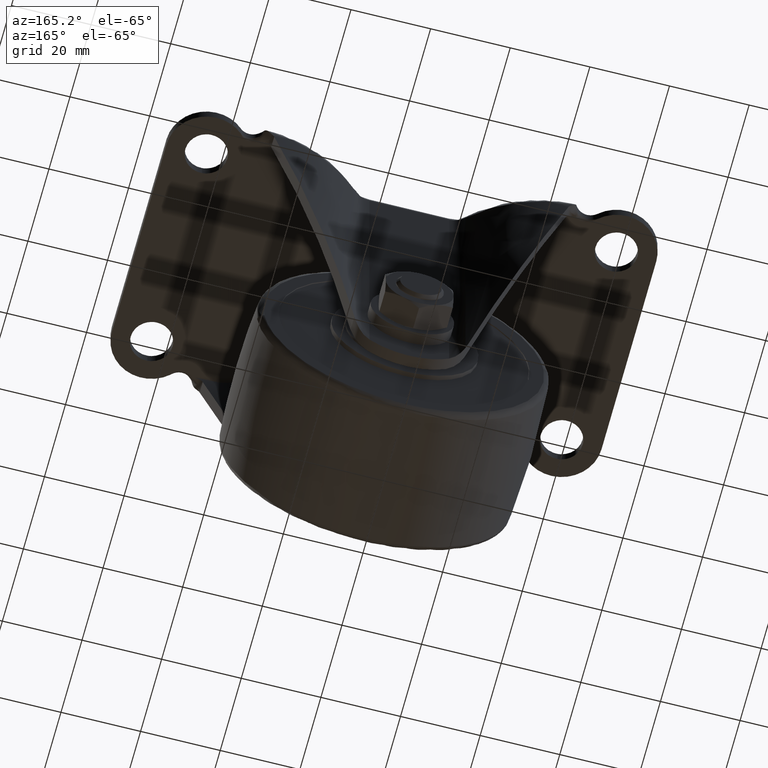
[diagram: clean part render]
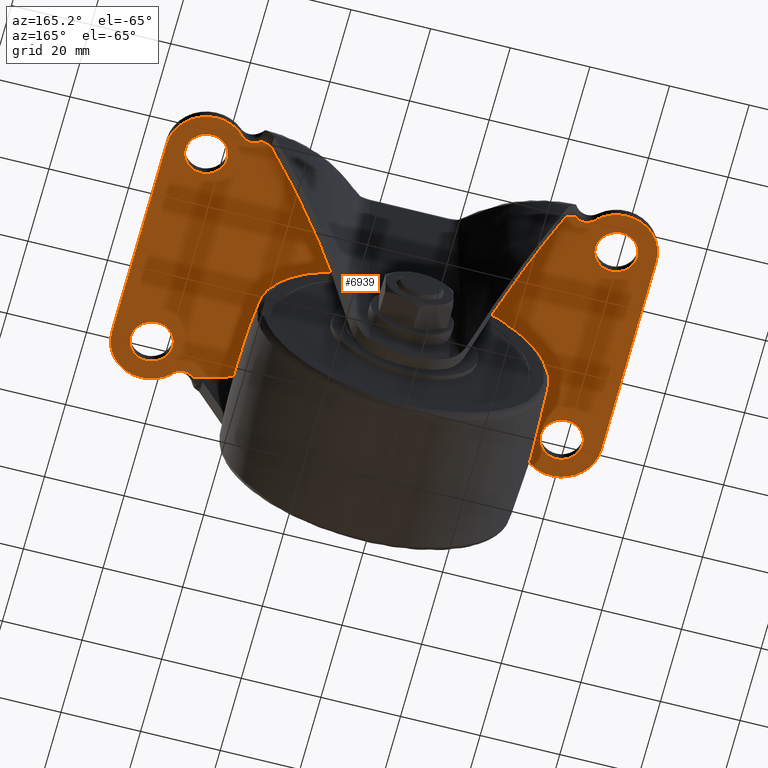
[diagram: same view with one face highlighted and labeled with its STEP entity id]
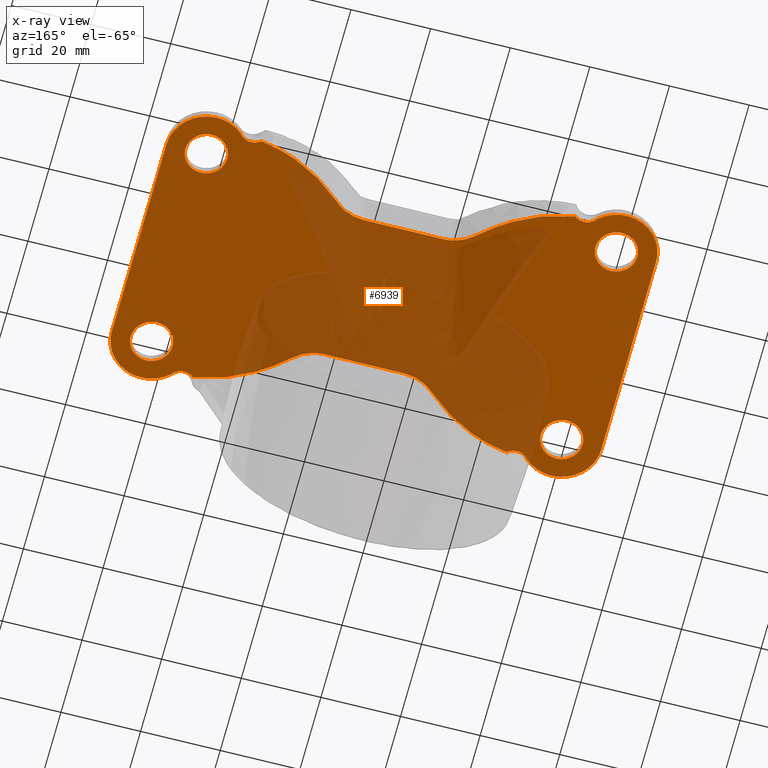
[diagram: x-ray of the same camera — body ghosted, the highlighted face saturated]
A machine part, auxiliary view. The second image highlights one B-rep face of the part: STEP entity #6939.
The next image is the same camera in x-ray: the body ghosted, the highlighted face saturated — about 42% of this face is hidden behind the body in this view.
In plain terms, the highlighted face is a freeform B-spline surface patch.
Its self-contained STEP definition (entity closure, byte-faithful):
#2417=CARTESIAN_POINT('',(-51.179495167190133,31.240207691699400,-2.900000000000000));
#2418=VERTEX_POINT('',#2417);
#2424=CARTESIAN_POINT('',(-46.250000000000000,26.0,-2.900000000000000));
#2425=VERTEX_POINT('',#2424);
#2426=CARTESIAN_POINT('',(-46.250000000000000,26.0,-2.900000000000000));
#2427=CARTESIAN_POINT('',(-46.250000000000000,30.938706851017070,-2.900000000000001));
#2428=CARTESIAN_POINT('',(-51.179495167190126,31.240207691699403,-2.900000000000001));
#2436=(BOUNDED_CURVE()B_SPLINE_CURVE(2,(#2426,#2427,#2428),.UNSPECIFIED.,.F.,.U.)B_SPLINE_CURVE_WITH_KNOTS((3,3),(0.500000000000000,0.739332962233675),.UNSPECIFIED.)CURVE()GEOMETRIC_REPRESENTATION_ITEM()RATIONAL_B_SPLINE_CURVE((1.0,0.719603993292882,0.976072041655427))REPRESENTATION_ITEM(''));
#2437=EDGE_CURVE('',#2425,#2418,#2436,.T.);
#2439=CARTESIAN_POINT('',(-51.820504832809867,20.759792308300600,-2.900000000000000));
#2440=VERTEX_POINT('',#2439);
#2441=CARTESIAN_POINT('',(-51.820504832809881,20.759792308300604,-2.900000000000001));
#2442=CARTESIAN_POINT('',(-51.660402007443885,20.749999999999996,-2.900000000000001));
#2443=CARTESIAN_POINT('',(-51.500000000000000,20.750000000000000,-2.900000000000000));
#2444=CARTESIAN_POINT('',(-46.249999999999993,20.750000000000000,-2.900000000000001));
#2445=CARTESIAN_POINT('',(-46.250000000000000,26.0,-2.900000000000000));
#2453=(BOUNDED_CURVE()B_SPLINE_CURVE(2,(#2441,#2442,#2443,#2444,#2445),.UNSPECIFIED.,.F.,.U.)B_SPLINE_CURVE_WITH_KNOTS((3,2,3),(0.239332962233675,0.250000000000000,0.500000000000000),.UNSPECIFIED.)CURVE()GEOMETRIC_REPRESENTATION_ITEM()RATIONAL_B_SPLINE_CURVE((0.976072041655427,0.987502787893665,1.0,0.707106781186547,1.0))REPRESENTATION_ITEM(''));
#2454=EDGE_CURVE('',#2440,#2425,#2453,.T.);
#2498=CARTESIAN_POINT('',(-56.749999999999993,26.0,-2.900000000000000));
#2499=VERTEX_POINT('',#2498);
#2500=CARTESIAN_POINT('',(-56.749999999999993,26.0,-2.900000000000000));
#2501=CARTESIAN_POINT('',(-56.749999999999979,21.061293148982934,-2.900000000000001));
#2502=CARTESIAN_POINT('',(-51.820504832809881,20.759792308300604,-2.900000000000000));
#2510=(BOUNDED_CURVE()B_SPLINE_CURVE(2,(#2500,#2501,#2502),.UNSPECIFIED.,.F.,.U.)B_SPLINE_CURVE_WITH_KNOTS((3,3),(0.0,0.239332962233675),.UNSPECIFIED.)CURVE()GEOMETRIC_REPRESENTATION_ITEM()RATIONAL_B_SPLINE_CURVE((1.0,0.719603993292882,0.976072041655427))REPRESENTATION_ITEM(''));
#2511=EDGE_CURVE('',#2499,#2440,#2510,.T.);
#2513=CARTESIAN_POINT('',(-51.179495167190140,31.240207691699403,-2.900000000000001));
#2514=CARTESIAN_POINT('',(-51.339597992556122,31.250000000000000,-2.900000000000001));
#2515=CARTESIAN_POINT('',(-51.500000000000000,31.250000000000000,-2.900000000000000));
#2516=CARTESIAN_POINT('',(-56.749999999999993,31.250000000000004,-2.900000000000001));
#2517=CARTESIAN_POINT('',(-56.749999999999993,26.0,-2.900000000000000));
#2525=(BOUNDED_CURVE()B_SPLINE_CURVE(2,(#2513,#2514,#2515,#2516,#2517),.UNSPECIFIED.,.F.,.U.)B_SPLINE_CURVE_WITH_KNOTS((3,2,3),(0.739332962233675,0.750000000000000,1.0),.UNSPECIFIED.)CURVE()GEOMETRIC_REPRESENTATION_ITEM()RATIONAL_B_SPLINE_CURVE((0.976072041655427,0.987502787893665,1.0,0.707106781186547,1.0))REPRESENTATION_ITEM(''));
#2526=EDGE_CURVE('',#2418,#2499,#2525,.T.);
#2599=CARTESIAN_POINT('',(-51.179495167190133,-20.759792308300600,-2.900000000000000));
#2600=VERTEX_POINT('',#2599);
#2606=CARTESIAN_POINT('',(-46.250000000000000,-26.0,-2.900000000000000));
#2607=VERTEX_POINT('',#2606);
#2608=CARTESIAN_POINT('',(-46.250000000000000,-26.0,-2.900000000000000));
#2609=CARTESIAN_POINT('',(-46.250000000000000,-21.061293148982930,-2.900000000000001));
#2610=CARTESIAN_POINT('',(-51.179495167190126,-20.759792308300611,-2.900000000000001));
#2618=(BOUNDED_CURVE()B_SPLINE_CURVE(2,(#2608,#2609,#2610),.UNSPECIFIED.,.F.,.U.)B_SPLINE_CURVE_WITH_KNOTS((3,3),(0.500000000000000,0.739332962233675),.UNSPECIFIED.)CURVE()GEOMETRIC_REPRESENTATION_ITEM()RATIONAL_B_SPLINE_CURVE((1.0,0.719603993292882,0.976072041655427))REPRESENTATION_ITEM(''));
#2619=EDGE_CURVE('',#2607,#2600,#2618,.T.);
#2621=CARTESIAN_POINT('',(-51.820504832809867,-31.240207691699400,-2.900000000000000));
#2622=VERTEX_POINT('',#2621);
#2623=CARTESIAN_POINT('',(-51.820504832809874,-31.240207691699396,-2.900000000000000));
#2624=CARTESIAN_POINT('',(-51.660402007443892,-31.249999999999996,-2.900000000000000));
#2625=CARTESIAN_POINT('',(-51.500000000000000,-31.250000000000000,-2.900000000000000));
#2626=CARTESIAN_POINT('',(-46.249999999999993,-31.250000000000004,-2.900000000000001));
#2627=CARTESIAN_POINT('',(-46.250000000000000,-26.0,-2.900000000000000));
#2635=(BOUNDED_CURVE()B_SPLINE_CURVE(2,(#2623,#2624,#2625,#2626,#2627),.UNSPECIFIED.,.F.,.U.)B_SPLINE_CURVE_WITH_KNOTS((3,2,3),(0.239332962233675,0.250000000000000,0.500000000000000),.UNSPECIFIED.)CURVE()GEOMETRIC_REPRESENTATION_ITEM()RATIONAL_B_SPLINE_CURVE((0.976072041655427,0.987502787893665,1.0,0.707106781186547,1.0))REPRESENTATION_ITEM(''));
#2636=EDGE_CURVE('',#2622,#2607,#2635,.T.);
#2680=CARTESIAN_POINT('',(-56.749999999999993,-26.0,-2.900000000000000));
#2681=VERTEX_POINT('',#2680);
#2682=CARTESIAN_POINT('',(-56.749999999999993,-26.0,-2.900000000000000));
#2683=CARTESIAN_POINT('',(-56.749999999999972,-30.938706851017063,-2.900000000000000));
#2684=CARTESIAN_POINT('',(-51.820504832809881,-31.240207691699400,-2.900000000000000));
#2692=(BOUNDED_CURVE()B_SPLINE_CURVE(2,(#2682,#2683,#2684),.UNSPECIFIED.,.F.,.U.)B_SPLINE_CURVE_WITH_KNOTS((3,3),(0.0,0.239332962233675),.UNSPECIFIED.)CURVE()GEOMETRIC_REPRESENTATION_ITEM()RATIONAL_B_SPLINE_CURVE((1.0,0.719603993292882,0.976072041655426))REPRESENTATION_ITEM(''));
#2693=EDGE_CURVE('',#2681,#2622,#2692,.T.);
#2695=CARTESIAN_POINT('',(-51.179495167190140,-20.759792308300604,-2.900000000000001));
#2696=CARTESIAN_POINT('',(-51.339597992556122,-20.749999999999996,-2.900000000000001));
#2697=CARTESIAN_POINT('',(-51.500000000000000,-20.750000000000000,-2.900000000000000));
#2698=CARTESIAN_POINT('',(-56.749999999999993,-20.750000000000000,-2.900000000000001));
#2699=CARTESIAN_POINT('',(-56.749999999999993,-26.0,-2.900000000000000));
#2707=(BOUNDED_CURVE()B_SPLINE_CURVE(2,(#2695,#2696,#2697,#2698,#2699),.UNSPECIFIED.,.F.,.U.)B_SPLINE_CURVE_WITH_KNOTS((3,2,3),(0.739332962233675,0.750000000000000,1.0),.UNSPECIFIED.)CURVE()GEOMETRIC_REPRESENTATION_ITEM()RATIONAL_B_SPLINE_CURVE((0.976072041655427,0.987502787893665,1.0,0.707106781186547,1.0))REPRESENTATION_ITEM(''));
#2708=EDGE_CURVE('',#2600,#2681,#2707,.T.);
#2781=CARTESIAN_POINT('',(51.820504832809867,31.240207691699400,-2.900000000000000));
#2782=VERTEX_POINT('',#2781);
#2788=CARTESIAN_POINT('',(56.749999999999993,26.0,-2.900000000000000));
#2789=VERTEX_POINT('',#2788);
#2790=CARTESIAN_POINT('',(56.749999999999993,26.0,-2.900000000000000));
#2791=CARTESIAN_POINT('',(56.749999999999972,30.938706851017070,-2.900000000000001));
#2792=CARTESIAN_POINT('',(51.820504832809881,31.240207691699403,-2.900000000000001));
#2800=(BOUNDED_CURVE()B_SPLINE_CURVE(2,(#2790,#2791,#2792),.UNSPECIFIED.,.F.,.U.)B_SPLINE_CURVE_WITH_KNOTS((3,3),(0.500000000000000,0.739332962233675),.UNSPECIFIED.)CURVE()GEOMETRIC_REPRESENTATION_ITEM()RATIONAL_B_SPLINE_CURVE((1.0,0.719603993292882,0.976072041655427))REPRESENTATION_ITEM(''));
#2801=EDGE_CURVE('',#2789,#2782,#2800,.T.);
#2803=CARTESIAN_POINT('',(51.179495167190133,20.759792308300600,-2.900000000000000));
#2804=VERTEX_POINT('',#2803);
#2805=CARTESIAN_POINT('',(51.179495167190133,20.759792308300600,-2.900000000000000));
#2806=CARTESIAN_POINT('',(51.339597992556122,20.750000000000000,-2.900000000000000));
#2807=CARTESIAN_POINT('',(51.500000000000000,20.750000000000000,-2.900000000000000));
#2808=CARTESIAN_POINT('',(56.749999999999993,20.750000000000000,-2.900000000000001));
#2809=CARTESIAN_POINT('',(56.749999999999993,26.0,-2.900000000000000));
#2817=(BOUNDED_CURVE()B_SPLINE_CURVE(2,(#2805,#2806,#2807,#2808,#2809),.UNSPECIFIED.,.F.,.U.)B_SPLINE_CURVE_WITH_KNOTS((3,2,3),(0.239332962233675,0.250000000000000,0.500000000000000),.UNSPECIFIED.)CURVE()GEOMETRIC_REPRESENTATION_ITEM()RATIONAL_B_SPLINE_CURVE((0.976072041655427,0.987502787893665,1.0,0.707106781186547,1.0))REPRESENTATION_ITEM(''));
#2818=EDGE_CURVE('',#2804,#2789,#2817,.T.);
#2862=CARTESIAN_POINT('',(46.250000000000000,26.0,-2.900000000000000));
#2863=VERTEX_POINT('',#2862);
#2864=CARTESIAN_POINT('',(46.250000000000000,26.0,-2.900000000000000));
#2865=CARTESIAN_POINT('',(46.250000000000000,21.061293148982930,-2.900000000000000));
#2866=CARTESIAN_POINT('',(51.179495167190119,20.759792308300597,-2.899999999999999));
#2874=(BOUNDED_CURVE()B_SPLINE_CURVE(2,(#2864,#2865,#2866),.UNSPECIFIED.,.F.,.U.)B_SPLINE_CURVE_WITH_KNOTS((3,3),(0.0,0.239332962233675),.UNSPECIFIED.)CURVE()GEOMETRIC_REPRESENTATION_ITEM()RATIONAL_B_SPLINE_CURVE((1.0,0.719603993292882,0.976072041655426))REPRESENTATION_ITEM(''));
#2875=EDGE_CURVE('',#2863,#2804,#2874,.T.);
#2877=CARTESIAN_POINT('',(51.820504832809881,31.240207691699403,-2.900000000000001));
#2878=CARTESIAN_POINT('',(51.660402007443885,31.250000000000004,-2.900000000000000));
#2879=CARTESIAN_POINT('',(51.500000000000000,31.250000000000000,-2.900000000000000));
#2880=CARTESIAN_POINT('',(46.249999999999993,31.250000000000004,-2.900000000000001));
#2881=CARTESIAN_POINT('',(46.250000000000000,26.0,-2.900000000000000));
#2889=(BOUNDED_CURVE()B_SPLINE_CURVE(2,(#2877,#2878,#2879,#2880,#2881),.UNSPECIFIED.,.F.,.U.)B_SPLINE_CURVE_WITH_KNOTS((3,2,3),(0.739332962233675,0.750000000000000,1.0),.UNSPECIFIED.)CURVE()GEOMETRIC_REPRESENTATION_ITEM()RATIONAL_B_SPLINE_CURVE((0.976072041655427,0.987502787893665,1.0,0.707106781186547,1.0))REPRESENTATION_ITEM(''));
#2890=EDGE_CURVE('',#2782,#2863,#2889,.T.);
#2963=CARTESIAN_POINT('',(51.820504832809867,-20.759792308300600,-2.900000000000000));
#2964=VERTEX_POINT('',#2963);
#2970=CARTESIAN_POINT('',(56.749999999999993,-26.0,-2.900000000000000));
#2971=VERTEX_POINT('',#2970);
#2972=CARTESIAN_POINT('',(56.749999999999993,-26.0,-2.900000000000000));
#2973=CARTESIAN_POINT('',(56.749999999999972,-21.061293148982930,-2.900000000000001));
#2974=CARTESIAN_POINT('',(51.820504832809881,-20.759792308300611,-2.900000000000001));
#2982=(BOUNDED_CURVE()B_SPLINE_CURVE(2,(#2972,#2973,#2974),.UNSPECIFIED.,.F.,.U.)B_SPLINE_CURVE_WITH_KNOTS((3,3),(0.500000000000000,0.739332962233675),.UNSPECIFIED.)CURVE()GEOMETRIC_REPRESENTATION_ITEM()RATIONAL_B_SPLINE_CURVE((1.0,0.719603993292882,0.976072041655427))REPRESENTATION_ITEM(''));
#2983=EDGE_CURVE('',#2971,#2964,#2982,.T.);
#2985=CARTESIAN_POINT('',(51.179495167190133,-31.240207691699400,-2.900000000000000));
#2986=VERTEX_POINT('',#2985);
#2987=CARTESIAN_POINT('',(51.179495167190133,-31.240207691699396,-2.900000000000000));
#2988=CARTESIAN_POINT('',(51.339597992556122,-31.249999999999996,-2.900000000000000));
#2989=CARTESIAN_POINT('',(51.500000000000000,-31.250000000000000,-2.900000000000000));
#2990=CARTESIAN_POINT('',(56.749999999999993,-31.250000000000004,-2.900000000000001));
#2991=CARTESIAN_POINT('',(56.749999999999993,-26.0,-2.900000000000000));
#2999=(BOUNDED_CURVE()B_SPLINE_CURVE(2,(#2987,#2988,#2989,#2990,#2991),.UNSPECIFIED.,.F.,.U.)B_SPLINE_CURVE_WITH_KNOTS((3,2,3),(0.239332962233675,0.250000000000000,0.500000000000000),.UNSPECIFIED.)CURVE()GEOMETRIC_REPRESENTATION_ITEM()RATIONAL_B_SPLINE_CURVE((0.976072041655427,0.987502787893665,1.0,0.707106781186547,1.0))REPRESENTATION_ITEM(''));
#3000=EDGE_CURVE('',#2986,#2971,#2999,.T.);
#3044=CARTESIAN_POINT('',(46.250000000000000,-26.0,-2.900000000000000));
#3045=VERTEX_POINT('',#3044);
#3046=CARTESIAN_POINT('',(46.250000000000000,-26.0,-2.900000000000000));
#3047=CARTESIAN_POINT('',(46.250000000000007,-30.938706851017077,-2.900000000000001));
#3048=CARTESIAN_POINT('',(51.179495167190140,-31.240207691699403,-2.900000000000001));
#3056=(BOUNDED_CURVE()B_SPLINE_CURVE(2,(#3046,#3047,#3048),.UNSPECIFIED.,.F.,.U.)B_SPLINE_CURVE_WITH_KNOTS((3,3),(0.0,0.239332962233675),.UNSPECIFIED.)CURVE()GEOMETRIC_REPRESENTATION_ITEM()RATIONAL_B_SPLINE_CURVE((1.0,0.719603993292882,0.976072041655427))REPRESENTATION_ITEM(''));
#3057=EDGE_CURVE('',#3045,#2986,#3056,.T.);
#3059=CARTESIAN_POINT('',(51.820504832809881,-20.759792308300611,-2.900000000000001));
#3060=CARTESIAN_POINT('',(51.660402007443885,-20.749999999999996,-2.900000000000000));
#3061=CARTESIAN_POINT('',(51.500000000000000,-20.750000000000000,-2.900000000000000));
#3062=CARTESIAN_POINT('',(46.249999999999993,-20.750000000000000,-2.900000000000001));
#3063=CARTESIAN_POINT('',(46.250000000000000,-26.0,-2.900000000000000));
#3071=(BOUNDED_CURVE()B_SPLINE_CURVE(2,(#3059,#3060,#3061,#3062,#3063),.UNSPECIFIED.,.F.,.U.)B_SPLINE_CURVE_WITH_KNOTS((3,2,3),(0.739332962233675,0.750000000000000,1.0),.UNSPECIFIED.)CURVE()GEOMETRIC_REPRESENTATION_ITEM()RATIONAL_B_SPLINE_CURVE((0.976072041655427,0.987502787893665,1.0,0.707106781186547,1.0))REPRESENTATION_ITEM(''));
#3072=EDGE_CURVE('',#2964,#3045,#3071,.T.);
#4091=CARTESIAN_POINT('',(-61.500000000000000,-26.0,-2.900000000000000));
#4092=VERTEX_POINT('',#4091);
#4098=CARTESIAN_POINT('',(-44.782090500815002,-33.407407390839403,-2.900000000000000));
#4099=VERTEX_POINT('',#4098);
#4100=CARTESIAN_POINT('',(-61.500000000000000,-26.0,-2.900000000000000));
#4101=CARTESIAN_POINT('',(-61.500398466991612,-26.991521464954779,-2.900000000000003));
#4102=CARTESIAN_POINT('',(-61.274743914934191,-28.493468587668620,-2.900000000000002));
#4103=CARTESIAN_POINT('',(-60.525822072085823,-30.400790700698199,-2.900000000000007));
#4104=CARTESIAN_POINT('',(-59.822728471220117,-31.595904799884561,-2.899999999999984));
#4105=CARTESIAN_POINT('',(-58.879134221229819,-32.805586696100121,-2.900000000000003));
#4106=CARTESIAN_POINT('',(-57.784470126972643,-33.845139797911067,-2.899999999999998));
#4107=CARTESIAN_POINT('',(-56.301119822848307,-34.825117580906010,-2.899999999999991));
#4108=CARTESIAN_POINT('',(-54.922100953797369,-35.436105818748644,-2.900000000000030));
#4109=CARTESIAN_POINT('',(-53.268044072261212,-35.891039993520792,-2.899999999999997));
#4110=CARTESIAN_POINT('',(-51.614493909470987,-36.059674033107143,-2.900000000000003));
#4111=CARTESIAN_POINT('',(-49.572525274457561,-35.880203071400317,-2.899999999999981));
#4112=CARTESIAN_POINT('',(-47.831163044045482,-35.368292805564863,-2.900000000000061));
#4113=CARTESIAN_POINT('',(-46.143780749048211,-34.499803943779263,-2.899999999999879));
#4114=CARTESIAN_POINT('',(-45.249391280311833,-33.831308928272414,-2.900000000000163));
#4115=CARTESIAN_POINT('',(-44.782090500815002,-33.407407390839403,-2.900000000000000));
#4116=B_SPLINE_CURVE_WITH_KNOTS('',3,(#4100,#4101,#4102,#4103,#4104,#4105,#4106,#4107,#4108,#4109,#4110,#4111,#4112,#4113,#4114,#4115),.UNSPECIFIED.,.F.,.U.,(4,1,1,1,1,1,1,1,1,1,1,1,1,4),(0.000000072688191,2.974409539399606,4.506680842081142,6.129109343518056,7.120597783297692,9.103528682393405,10.635864247580891,12.438421431263830,13.610171432831590,15.773432334682820,17.395846362430600,19.739358620826511,21.181520612456019,23.074280991551731),.UNSPECIFIED.);
#4117=EDGE_CURVE('',#4092,#4099,#4116,.T.);
#4259=CARTESIAN_POINT('',(-44.782089997670951,33.407407454744998,-2.900000000000000));
#4260=VERTEX_POINT('',#4259);
#4266=CARTESIAN_POINT('',(-61.500000000000000,26.0,-2.900000000000000));
#4267=VERTEX_POINT('',#4266);
#4268=CARTESIAN_POINT('',(-44.782089997670951,33.407407454744998,-2.900000000000000));
#4269=CARTESIAN_POINT('',(-45.405083122775899,33.972759740859203,-2.900000000000002));
#4270=CARTESIAN_POINT('',(-46.546795683423873,34.770904828054263,-2.899999999999996));
#4271=CARTESIAN_POINT('',(-48.432246184784063,35.575074712585099,-2.900000000000018));
#4272=CARTESIAN_POINT('',(-50.140102571975973,35.962114730225167,-2.899999999999964));
#4273=CARTESIAN_POINT('',(-51.826639198634872,36.033944633921351,-2.900000000000069));
#4274=CARTESIAN_POINT('',(-53.203812665256621,35.880933207155032,-2.899999999999895));
#4275=CARTESIAN_POINT('',(-54.519981833574441,35.563246630323469,-2.900000000000061));
#4276=CARTESIAN_POINT('',(-56.066703836317153,34.967972453108338,-2.899999999999963));
#4277=CARTESIAN_POINT('',(-57.475183678812932,34.082347516704267,-2.899999999999973));
#4278=CARTESIAN_POINT('',(-58.660712921689822,33.015742264657788,-2.900000000000059));
#4279=CARTESIAN_POINT('',(-59.511204480863299,32.039344619303733,-2.899999999999831));
#4280=CARTESIAN_POINT('',(-60.316236119446110,30.802175563558421,-2.900000000000112));
#4281=CARTESIAN_POINT('',(-60.910994240627112,29.483165151328048,-2.899999999999969));
#4282=CARTESIAN_POINT('',(-61.375946377767782,27.862694671769379,-2.899999999999959));
#4283=CARTESIAN_POINT('',(-61.500129926211400,26.721067846508049,-2.900000000000127));
#4284=CARTESIAN_POINT('',(-61.500000000000000,26.0,-2.900000000000000));
#4285=B_SPLINE_CURVE_WITH_KNOTS('',3,(#4268,#4269,#4270,#4271,#4272,#4273,#4274,#4275,#4276,#4277,#4278,#4279,#4280,#4281,#4282,#4283,#4284),.UNSPECIFIED.,.F.,.U.,(4,1,1,1,1,1,1,1,1,1,1,1,1,1,4),(0.000000219927067,2.523741394084517,4.146154616843734,6.129109539009477,7.751530753906604,9.193705739910952,10.275282094356189,11.807524255209120,14.151010093106530,15.232606239752100,16.584631215615168,18.026787005913899,19.649197042390188,20.911111143176988,23.074281322189979),.UNSPECIFIED.);
#4286=EDGE_CURVE('',#4260,#4267,#4285,.T.);
#4307=CARTESIAN_POINT('',(-61.500000000000000,-26.0,-2.900000000000000));
#4308=CARTESIAN_POINT('',(-61.500000000000000,26.0,-2.900000000000000));
#4309=QUASI_UNIFORM_CURVE('',1,(#4307,#4308),.UNSPECIFIED.,.F.,.U.);
#4310=EDGE_CURVE('',#4092,#4267,#4309,.T.);
#4584=CARTESIAN_POINT('',(-39.313223629342303,32.754914423428552,-2.900000000000000));
#4585=VERTEX_POINT('',#4584);
#4586=CARTESIAN_POINT('',(-44.782089997670951,33.407407454744998,-2.900000000000000));
#4587=CARTESIAN_POINT('',(-44.661076250323070,33.212536216885773,-2.900000000000004));
#4588=CARTESIAN_POINT('',(-44.367191954318827,32.835786302555967,-2.899999999999997));
#4589=CARTESIAN_POINT('',(-43.912018697127863,32.455614231182608,-2.900000000000004));
#4590=CARTESIAN_POINT('',(-43.438545913661009,32.161179884729343,-2.899999999999997));
#4591=CARTESIAN_POINT('',(-42.974464697394943,31.950208248689162,-2.899999999999990));
#4592=CARTESIAN_POINT('',(-42.433267963798841,31.809785216739119,-2.900000000000042));
#4593=CARTESIAN_POINT('',(-41.943114857112732,31.759744286123031,-2.899999999999945));
#4594=CARTESIAN_POINT('',(-41.401603162074323,31.773678824244762,-2.900000000000022));
#4595=CARTESIAN_POINT('',(-40.851652625649983,31.877842318645499,-2.900000000000000));
#4596=CARTESIAN_POINT('',(-40.326741031016603,32.068445328295958,-2.899999999999987));
#4597=CARTESIAN_POINT('',(-39.816869790876559,32.333103916482408,-2.900000000000026));
#4598=CARTESIAN_POINT('',(-39.502147495768810,32.573159036989601,-2.899999999999997));
#4599=CARTESIAN_POINT('',(-39.313223629342303,32.754914423428552,-2.900000000000000));
#4600=B_SPLINE_CURVE_WITH_KNOTS('',3,(#4586,#4587,#4588,#4589,#4590,#4591,#4592,#4593,#4594,#4595,#4596,#4597,#4598,#4599),.UNSPECIFIED.,.F.,.U.,(4,1,1,1,1,1,1,1,1,1,1,4),(-0.000001089689700,0.688145109263933,1.425475453561082,1.769618417073297,2.359461724495272,2.949287875934055,3.440879455724394,3.834113223670590,4.571375444486201,5.112210494498669,5.505406222047094,6.291892568040706),.UNSPECIFIED.);
#4601=EDGE_CURVE('',#4260,#4585,#4600,.T.);
#4762=CARTESIAN_POINT('',(-39.313223629342303,-32.754914423428502,-2.900000000000000));
#4763=VERTEX_POINT('',#4762);
#4844=CARTESIAN_POINT('',(-39.313223629342303,-32.754914423428502,-2.900000000000000));
#4845=CARTESIAN_POINT('',(-39.478577797069448,-32.595941154540860,-2.900000000000003));
#4846=CARTESIAN_POINT('',(-39.815175759833643,-32.331285312305532,-2.900000000000003));
#4847=CARTESIAN_POINT('',(-40.311617794711523,-32.074056831855728,-2.899999999999992));
#4848=CARTESIAN_POINT('',(-40.836966219269073,-31.886718864454011,-2.900000000000013));
#4849=CARTESIAN_POINT('',(-41.320108531370849,-31.785527982190761,-2.899999999999981));
#4850=CARTESIAN_POINT('',(-41.860954088816491,-31.756349657865950,-2.900000000000016));
#4851=CARTESIAN_POINT('',(-42.417863053511162,-31.801241444972639,-2.899999999999971));
#4852=CARTESIAN_POINT('',(-42.959082092397907,-31.945755492008900,-2.900000000000048));
#4853=CARTESIAN_POINT('',(-43.437280038769323,-32.163043527524302,-2.899999999999941));
#4854=CARTESIAN_POINT('',(-43.886808490347377,-32.434467847378208,-2.900000000000047));
#4855=CARTESIAN_POINT('',(-44.367252428321279,-32.835717156390949,-2.899999999999996));
#4856=CARTESIAN_POINT('',(-44.661077849752061,-33.212538630458468,-2.899999999999981));
#4857=CARTESIAN_POINT('',(-44.782090500815002,-33.407407390839403,-2.900000000000000));
#4858=B_SPLINE_CURVE_WITH_KNOTS('',3,(#4844,#4845,#4846,#4847,#4848,#4849,#4850,#4851,#4852,#4853,#4854,#4855,#4856,#4857),.UNSPECIFIED.,.F.,.U.,(4,1,1,1,1,1,1,1,1,1,1,4),(-0.000015098844460,0.688158847569463,1.277973499485799,1.671241755289418,2.359475468576993,2.752700306694979,3.293382723190647,4.030736336293051,4.423955554401989,4.866409383877942,5.603733997824333,6.291886917144314),.UNSPECIFIED.);
#4859=EDGE_CURVE('',#4763,#4099,#4858,.T.);
#4986=CARTESIAN_POINT('',(39.313222659267659,-32.754914394679162,-2.900000000000000));
#4987=VERTEX_POINT('',#4986);
#5087=CARTESIAN_POINT('',(44.782089997671306,-33.407407454744998,-2.900000000000000));
#5088=VERTEX_POINT('',#5087);
#5089=CARTESIAN_POINT('',(44.782089997671306,-33.407407454744998,-2.900000000000000));
#5090=CARTESIAN_POINT('',(44.661076444612803,-33.212535360125351,-2.900000000000000));
#5091=CARTESIAN_POINT('',(44.367189742279429,-32.835792062269363,-2.900000000000004));
#5092=CARTESIAN_POINT('',(43.912008549423398,-32.455624676805030,-2.899999999999997));
#5093=CARTESIAN_POINT('',(43.382919761707157,-32.126430712272509,-2.900000000000010));
#5094=CARTESIAN_POINT('',(42.896540926507683,-31.921650988474081,-2.899999999999980));
#5095=CARTESIAN_POINT('',(42.351578060105467,-31.800603567488078,-2.900000000000017));
#5096=CARTESIAN_POINT('',(41.926681574455813,-31.760158408091939,-2.899999999999990));
#5097=CARTESIAN_POINT('',(41.401629340561321,-31.773678503996621,-2.900000000000002));
#5098=CARTESIAN_POINT('',(40.916288322125162,-31.865600025632439,-2.899999999999998));
#5099=CARTESIAN_POINT('',(40.387640699915032,-32.042820462180721,-2.900000000000003));
#5100=CARTESIAN_POINT('',(39.869347057500050,-32.293010117751088,-2.899999999999996));
#5101=CARTESIAN_POINT('',(39.502137894165408,-32.573187349888542,-2.900000000000003));
#5102=CARTESIAN_POINT('',(39.313222659267659,-32.754914394679162,-2.900000000000000));
#5103=B_SPLINE_CURVE_WITH_KNOTS('',3,(#5089,#5090,#5091,#5092,#5093,#5094,#5095,#5096,#5097,#5098,#5099,#5100,#5101,#5102),.UNSPECIFIED.,.F.,.U.,(4,1,1,1,1,1,1,1,1,1,1,4),(-0.000001089799736,0.688145188684945,1.425475618878593,1.769618621923963,2.556076970692357,2.998503947990014,3.440879854456705,3.834113667943924,4.571375974294161,4.915599186480790,5.505406860164233,6.291893297336511),.UNSPECIFIED.);
#5104=EDGE_CURVE('',#5088,#4987,#5103,.T.);
#5157=CARTESIAN_POINT('',(44.782089500815303,33.407407390839403,-2.900000000000000));
#5158=VERTEX_POINT('',#5157);
#5185=CARTESIAN_POINT('',(39.313222659267659,32.754914394679162,-2.900000000000000));
#5186=VERTEX_POINT('',#5185);
#5187=CARTESIAN_POINT('',(39.313222659267659,32.754914394679162,-2.900000000000000));
#5188=CARTESIAN_POINT('',(39.478576248370373,32.595939888270223,-2.900000000000008));
#5189=CARTESIAN_POINT('',(39.815177785818562,32.331291781593002,-2.899999999999994));
#5190=CARTESIAN_POINT('',(40.311607805236669,32.074040304733970,-2.900000000000001));
#5191=CARTESIAN_POINT('',(40.775201225420723,31.908801743329381,-2.900000000000000));
#5192=CARTESIAN_POINT('',(41.190733594538862,31.810899557870361,-2.900000000000001));
#5193=CARTESIAN_POINT('',(41.729035066465642,31.751358350129738,-2.900000000000000));
#5194=CARTESIAN_POINT('',(42.354207562022793,31.784191304724590,-2.899999999999989));
#5195=CARTESIAN_POINT('',(42.959073094063037,31.945759587983929,-2.900000000000035));
#5196=CARTESIAN_POINT('',(43.437282586433717,32.163031385745882,-2.899999999999943));
#5197=CARTESIAN_POINT('',(43.830602671007640,32.400636932103360,-2.900000000000034));
#5198=CARTESIAN_POINT('',(44.320015032651682,32.788298501097472,-2.899999999999992));
#5199=CARTESIAN_POINT('',(44.626631561064180,33.156664956321833,-2.899999999999978));
#5200=CARTESIAN_POINT('',(44.782089500815303,33.407407390839403,-2.900000000000000));
#5201=B_SPLINE_CURVE_WITH_KNOTS('',3,(#5187,#5188,#5189,#5190,#5191,#5192,#5193,#5194,#5195,#5196,#5197,#5198,#5199,#5200),.UNSPECIFIED.,.F.,.U.,(4,1,1,1,1,1,1,1,1,1,1,4),(-0.000015098831562,0.688158843495521,1.277973491909905,1.671241745378972,2.162877117145010,2.556081034585501,3.293382703647196,4.030736312371372,4.423955528146081,4.866409354995259,5.407108672572107,6.291886879798029),.UNSPECIFIED.);
#5202=EDGE_CURVE('',#5186,#5158,#5201,.T.);
#5263=CARTESIAN_POINT('',(-17.444356074022700,-21.563408115553749,-2.900000000000000));
#5264=VERTEX_POINT('',#5263);
#5279=CARTESIAN_POINT('',(-38.605546947039151,-32.495647056065053,-2.900000000000000));
#5280=VERTEX_POINT('',#5279);
#5290=CARTESIAN_POINT('',(-17.444356074022700,-21.563408115553749,-2.900000000000000));
#5291=CARTESIAN_POINT('',(-18.911642680807049,-22.944740740705889,-2.900000000000010));
#5292=CARTESIAN_POINT('',(-21.377222054239240,-25.013984131459559,-2.899999999999988));
#5293=CARTESIAN_POINT('',(-24.674425952058620,-27.227902330762291,-2.900000000000016));
#5294=CARTESIAN_POINT('',(-27.844340163550839,-29.046063681738548,-2.899999999999978));
#5295=CARTESIAN_POINT('',(-31.001220229392651,-30.490842830494039,-2.899999999999998));
#5296=CARTESIAN_POINT('',(-34.894057728489223,-31.770522979332000,-2.900000000000038));
#5297=CARTESIAN_POINT('',(-37.236392748777376,-32.282442601845453,-2.899999999999973));
#5298=CARTESIAN_POINT('',(-38.605546947039151,-32.495647056065053,-2.900000000000000));
#5299=B_SPLINE_CURVE_WITH_KNOTS('',3,(#5290,#5291,#5292,#5293,#5294,#5295,#5296,#5297,#5298),.UNSPECIFIED.,.F.,.U.,(4,1,1,1,1,1,4),(-0.000015331214680,6.046405921721519,9.636523779394791,11.903945681168169,17.005564134637460,20.028750854928418,24.185661294747661),.UNSPECIFIED.);
#5300=EDGE_CURVE('',#5264,#5280,#5299,.T.);
#5325=CARTESIAN_POINT('',(-39.313223629342303,-32.598229038642103,-2.900000000000000));
#5326=VERTEX_POINT('',#5325);
#5334=CARTESIAN_POINT('',(-38.605546947039151,-32.495647056065053,-2.900000000000000));
#5335=CARTESIAN_POINT('',(-38.716139931310160,-32.512912649879198,-2.899999999999998));
#5336=CARTESIAN_POINT('',(-38.848319369502917,-32.537104035891339,-2.900000000000003));
#5337=CARTESIAN_POINT('',(-38.979641622540662,-32.565378058176798,-2.899999999999999));
#5338=CARTESIAN_POINT('',(-39.104297383595181,-32.588813542606992,-2.900000000000000));
#5339=CARTESIAN_POINT('',(-39.208764882214972,-32.598639732667607,-2.900000000000004));
#5340=CARTESIAN_POINT('',(-39.313223629342303,-32.598229038642103,-2.900000000000000));
#5341=B_SPLINE_CURVE_WITH_KNOTS('',3,(#5334,#5335,#5336,#5337,#5338,#5339,#5340),.UNSPECIFIED.,.F.,.U.,(4,1,2,4),(-0.000014549479197,0.335806282963107,0.402990432494858,0.716364830845647),.UNSPECIFIED.);
#5342=EDGE_CURVE('',#5280,#5326,#5341,.T.);
#5365=CARTESIAN_POINT('',(-9.973044102620669,-18.600000000000001,-2.900000000000000));
#5366=VERTEX_POINT('',#5365);
#5382=CARTESIAN_POINT('',(-9.973044102620673,-18.600000000000009,-2.900000000000000));
#5383=CARTESIAN_POINT('',(-14.296400524411949,-18.600000177466470,-2.900000000000000));
#5384=CARTESIAN_POINT('',(-17.444356074022689,-21.563408115553749,-2.900000000000000));
#5392=(BOUNDED_CURVE()B_SPLINE_CURVE(2,(#5382,#5383,#5384),.UNSPECIFIED.,.F.,.U.)CURVE()GEOMETRIC_REPRESENTATION_ITEM()QUASI_UNIFORM_CURVE()RATIONAL_B_SPLINE_CURVE((1.0,0.929550354729901,1.0))REPRESENTATION_ITEM(''));
#5393=EDGE_CURVE('',#5366,#5264,#5392,.T.);
#5412=CARTESIAN_POINT('',(9.973043655194289,-18.600000000000001,-2.900000000000000));
#5413=VERTEX_POINT('',#5412);
#5429=CARTESIAN_POINT('',(9.973043655194289,-18.600000000000001,-2.900000000000000));
#5430=CARTESIAN_POINT('',(-9.973044102620669,-18.600000000000001,-2.900000000000000));
#5431=QUASI_UNIFORM_CURVE('',1,(#5429,#5430),.UNSPECIFIED.,.F.,.U.);
#5432=EDGE_CURVE('',#5413,#5366,#5431,.T.);
#5454=CARTESIAN_POINT('',(17.444356074022899,-21.563408115553749,-2.900000000000000));
#5455=VERTEX_POINT('',#5454);
#5471=CARTESIAN_POINT('',(17.444356074022881,-21.563408115553770,-2.900000000000000));
#5472=CARTESIAN_POINT('',(14.296400335893845,-18.599999999999994,-2.900000000000000));
#5473=CARTESIAN_POINT('',(9.973043655194289,-18.600000000000001,-2.900000000000000));
#5481=(BOUNDED_CURVE()B_SPLINE_CURVE(2,(#5471,#5472,#5473),.UNSPECIFIED.,.F.,.U.)CURVE()GEOMETRIC_REPRESENTATION_ITEM()QUASI_UNIFORM_CURVE()RATIONAL_B_SPLINE_CURVE((1.0,0.929550347162744,1.0))REPRESENTATION_ITEM(''));
#5482=EDGE_CURVE('',#5455,#5413,#5481,.T.);
#5530=CARTESIAN_POINT('',(38.605545959287049,-32.495647038688602,-2.900000000000000));
#5531=VERTEX_POINT('',#5530);
#5543=CARTESIAN_POINT('',(38.605545959287049,-32.495647038688602,-2.900000000000000));
#5544=CARTESIAN_POINT('',(37.609827692262677,-32.340499806177093,-2.900000000000000));
#5545=CARTESIAN_POINT('',(35.508421748760078,-31.917779114066590,-2.899999999999999));
#5546=CARTESIAN_POINT('',(32.850611435872302,-31.121705692932551,-2.899999999999993));
#5547=CARTESIAN_POINT('',(29.966236285923060,-30.021091607384150,-2.900000000000014));
#5548=CARTESIAN_POINT('',(28.143187410318749,-29.155355351596711,-2.900000000000002));
#5549=CARTESIAN_POINT('',(25.925994681454799,-27.959143506079560,-2.899999999999994));
#5550=CARTESIAN_POINT('',(23.816922781509810,-26.695902498684031,-2.900000000000018));
#5551=CARTESIAN_POINT('',(20.644332391819301,-24.413123457557301,-2.900000000000007));
#5552=CARTESIAN_POINT('',(18.544972709289159,-22.599482440743380,-2.900000000000000));
#5553=CARTESIAN_POINT('',(17.444356074022899,-21.563408115553749,-2.900000000000000));
#5554=B_SPLINE_CURVE_WITH_KNOTS('',3,(#5543,#5544,#5545,#5546,#5547,#5548,#5549,#5550,#5551,#5552,#5553),.UNSPECIFIED.,.F.,.U.,(4,1,1,1,1,1,1,1,4),(0.000019270379841,3.023220264341436,6.424305305000910,8.313806867269177,12.281716563301179,12.470697023678520,15.871782307932399,19.650774144841161,24.185654262650850),.UNSPECIFIED.);
#5555=EDGE_CURVE('',#5531,#5455,#5554,.T.);
#5580=CARTESIAN_POINT('',(39.313222659267659,-32.598229048558302,-2.900000000000000));
#5581=VERTEX_POINT('',#5580);
#5582=CARTESIAN_POINT('',(39.313222659267659,-32.598229048558302,-2.900000000000000));
#5583=CARTESIAN_POINT('',(39.253530069459970,-32.598315358736272,-2.900000000000001));
#5584=CARTESIAN_POINT('',(39.134360032902727,-32.589545896637581,-2.899999999999997));
#5585=CARTESIAN_POINT('',(38.986876118149233,-32.566591552605573,-2.900000000000003));
#5586=CARTESIAN_POINT('',(38.898914586552941,-32.550016064749677,-2.899999999999998));
#5587=CARTESIAN_POINT('',(38.781463910998163,-32.528818340841113,-2.900000000000002));
#5588=CARTESIAN_POINT('',(38.693451776366757,-32.512520083482897,-2.899999999999999));
#5589=CARTESIAN_POINT('',(38.605545959287049,-32.495647038688602,-2.900000000000000));
#5590=B_SPLINE_CURVE_WITH_KNOTS('',3,(#5582,#5583,#5584,#5585,#5586,#5587,#5588,#5589),.UNSPECIFIED.,.F.,.U.,(4,1,1,2,4),(0.000015131415557,0.178997867752195,0.358049772034503,0.447558983379140,0.716086624847513),.UNSPECIFIED.);
#5591=EDGE_CURVE('',#5581,#5531,#5590,.T.);
#5618=CARTESIAN_POINT('',(39.313222659267659,-32.754914394679162,-2.900000000000000));
#5619=CARTESIAN_POINT('',(39.313222659267659,-32.598229048558302,-2.900000000000000));
#5620=QUASI_UNIFORM_CURVE('',1,(#5618,#5619),.UNSPECIFIED.,.F.,.U.);
#5621=EDGE_CURVE('',#4987,#5581,#5620,.T.);
#5647=CARTESIAN_POINT('',(-39.313223629342303,-32.598229038642103,-2.900000000000000));
#5648=CARTESIAN_POINT('',(-39.313223629342303,-32.754914423428502,-2.900000000000000));
#5649=QUASI_UNIFORM_CURVE('',1,(#5647,#5648),.UNSPECIFIED.,.F.,.U.);
#5650=EDGE_CURVE('',#5326,#4763,#5649,.T.);
#6741=CARTESIAN_POINT('',(-67.643849761602141,39.590585271803597,-2.900000000000000));
#6742=CARTESIAN_POINT('',(67.643853060719209,39.590585271803597,-2.900000000000000));
#6743=CARTESIAN_POINT('',(-67.643849761602141,-39.590586558911497,-2.900000000000000));
#6744=CARTESIAN_POINT('',(67.643853060719209,-39.590586558911497,-2.900000000000000));
#6745=B_SPLINE_SURFACE_WITH_KNOTS('',1,1,((#6741,#6743),(#6742,#6744)),.UNSPECIFIED.,.F.,.F.,.U.,(2,2),(2,2),(0.0,135.287702822321390),(0.0,79.181171830715101),.UNSPECIFIED.);
#6746=CARTESIAN_POINT('',(61.500000000000000,-26.0,-2.900000000000000));
#6747=VERTEX_POINT('',#6746);
#6748=CARTESIAN_POINT('',(44.782089997671306,-33.407407454744998,-2.900000000000000));
#6749=CARTESIAN_POINT('',(45.516262540701867,-34.073824159663992,-2.899999999999996));
#6750=CARTESIAN_POINT('',(46.805732249662938,-34.932469952020547,-2.900000000000013));
#6751=CARTESIAN_POINT('',(48.612674119467911,-35.608389420132873,-2.899999999999986));
#6752=CARTESIAN_POINT('',(50.081742448406779,-35.934381194661292,-2.900000000000016));
#6753=CARTESIAN_POINT('',(51.825937161903070,-36.064108336172531,-2.899999999999975));
#6754=CARTESIAN_POINT('',(53.595990702794211,-35.835084216839142,-2.900000000000036));
#6755=CARTESIAN_POINT('',(55.345426089248718,-35.276667427989963,-2.899999999999968));
#6756=CARTESIAN_POINT('',(56.693000786088227,-34.597777398074442,-2.899999999999979));
#6757=CARTESIAN_POINT('',(58.202897736181022,-33.499577148735838,-2.900000000000023));
#6758=CARTESIAN_POINT('',(59.532685046742763,-32.092432198306639,-2.899999999999989));
#6759=CARTESIAN_POINT('',(60.582123220823512,-30.326679467791092,-2.899999999999995));
#6760=CARTESIAN_POINT('',(61.310250239173712,-28.313279481706370,-2.900000000000078));
#6761=CARTESIAN_POINT('',(61.500274548787502,-26.871310222289921,-2.899999999999832));
#6762=CARTESIAN_POINT('',(61.500000000000000,-26.0,-2.900000000000000));
#6763=B_SPLINE_CURVE_WITH_KNOTS('',3,(#6748,#6749,#6750,#6751,#6752,#6753,#6754,#6755,#6756,#6757,#6758,#6759,#6760,#6761,#6762),.UNSPECIFIED.,.F.,.U.,(4,1,1,1,1,1,1,1,1,1,1,1,4),(0.000000220128140,2.974409710226869,4.596825973534173,5.768571679265214,7.481123256982272,9.824611595635263,11.086519841261930,12.979260745294450,14.331257523520449,16.674774084295969,18.747860464471540,20.460441059032888,23.074281322188948),.UNSPECIFIED.);
#6764=EDGE_CURVE('',#5088,#6747,#6763,.T.);
#6765=ORIENTED_EDGE('',*,*,#6764,.F.);
#6766=ORIENTED_EDGE('',*,*,#5104,.T.);
#6767=ORIENTED_EDGE('',*,*,#5621,.T.);
#6768=ORIENTED_EDGE('',*,*,#5591,.T.);
#6769=ORIENTED_EDGE('',*,*,#5555,.T.);
#6770=ORIENTED_EDGE('',*,*,#5482,.T.);
#6771=ORIENTED_EDGE('',*,*,#5432,.T.);
#6772=ORIENTED_EDGE('',*,*,#5393,.T.);
#6773=ORIENTED_EDGE('',*,*,#5300,.T.);
#6774=ORIENTED_EDGE('',*,*,#5342,.T.);
#6775=ORIENTED_EDGE('',*,*,#5650,.T.);
#6776=ORIENTED_EDGE('',*,*,#4859,.T.);
#6777=ORIENTED_EDGE('',*,*,#4117,.F.);
#6778=ORIENTED_EDGE('',*,*,#4310,.T.);
#6779=ORIENTED_EDGE('',*,*,#4286,.F.);
#6780=ORIENTED_EDGE('',*,*,#4601,.T.);
#6781=CARTESIAN_POINT('',(-39.313223629342303,32.598229038642103,-2.900000000000000));
#6782=VERTEX_POINT('',#6781);
#6783=CARTESIAN_POINT('',(-39.313223629342303,32.754914423428552,-2.900000000000000));
#6784=CARTESIAN_POINT('',(-39.313223629342303,32.598229038642103,-2.900000000000000));
#6785=QUASI_UNIFORM_CURVE('',1,(#6783,#6784),.UNSPECIFIED.,.F.,.U.);
#6786=EDGE_CURVE('',#4585,#6782,#6785,.T.);
#6787=ORIENTED_EDGE('',*,*,#6786,.T.);
#6788=CARTESIAN_POINT('',(-38.605546951768353,32.495647056806447,-2.900000000000000));
#6789=VERTEX_POINT('',#6788);
#6790=CARTESIAN_POINT('',(-39.313223629342303,32.598229038642103,-2.900000000000000));
#6791=CARTESIAN_POINT('',(-39.253530177599778,32.598327596181669,-2.900000000000003));
#6792=CARTESIAN_POINT('',(-39.134363609215619,32.589518611478482,-2.899999999999996));
#6793=CARTESIAN_POINT('',(-38.986876497181932,32.566607225619627,-2.900000000000002));
#6794=CARTESIAN_POINT('',(-38.898915608468670,32.550012506415570,-2.899999999999999));
#6795=CARTESIAN_POINT('',(-38.781464898398731,32.528818351834289,-2.900000000000004));
#6796=CARTESIAN_POINT('',(-38.693452766147409,32.512520097664932,-2.899999999999993));
#6797=CARTESIAN_POINT('',(-38.605546951768353,32.495647056806447,-2.900000000000000));
#6798=B_SPLINE_CURVE_WITH_KNOTS('',3,(#6790,#6791,#6792,#6793,#6794,#6795,#6796,#6797),.UNSPECIFIED.,.F.,.U.,(4,1,1,2,4),(0.000015131414133,0.178997861172985,0.358049758880557,0.447558966937057,0.716086598541019),.UNSPECIFIED.);
#6799=EDGE_CURVE('',#6782,#6789,#6798,.T.);
#6800=ORIENTED_EDGE('',*,*,#6799,.T.);
#6801=CARTESIAN_POINT('',(-17.444356074022700,21.563408115553749,-2.900000000000000));
#6802=VERTEX_POINT('',#6801);
#6803=CARTESIAN_POINT('',(-38.605546951768353,32.495647056806447,-2.900000000000000));
#6804=CARTESIAN_POINT('',(-37.734299313424422,32.359881805325927,-2.900000000000001));
#6805=CARTESIAN_POINT('',(-35.878525285777890,31.997198577596969,-2.899999999999996));
#6806=CARTESIAN_POINT('',(-32.966012718892223,31.176177636110189,-2.900000000000005));
#6807=CARTESIAN_POINT('',(-29.962201104640862,30.028431077517791,-2.900000000000001));
#6808=CARTESIAN_POINT('',(-27.921522954634440,29.035718329754690,-2.899999999999999));
#6809=CARTESIAN_POINT('',(-25.704224357752750,27.839543664562349,-2.900000000000000));
#6810=CARTESIAN_POINT('',(-23.391298225730100,26.424150037226379,-2.900000000000006));
#6811=CARTESIAN_POINT('',(-20.257615523449800,24.088537802622429,-2.899999999999996));
#6812=CARTESIAN_POINT('',(-18.361565667098251,22.426820251956858,-2.900000000000003));
#6813=CARTESIAN_POINT('',(-17.444356074022700,21.563408115553749,-2.900000000000000));
#6814=B_SPLINE_CURVE_WITH_KNOTS('',3,(#6803,#6804,#6805,#6806,#6807,#6808,#6809,#6810,#6811,#6812,#6813),.UNSPECIFIED.,.F.,.U.,(4,1,1,1,1,1,1,1,4),(0.000019270393842,2.645307096657618,5.668488732547093,9.069569765680210,12.281717043857400,12.470697511638919,16.627587486420371,20.406571403206470,24.185655208971379),.UNSPECIFIED.);
#6815=EDGE_CURVE('',#6789,#6802,#6814,.T.);
#6816=ORIENTED_EDGE('',*,*,#6815,.T.);
#6817=CARTESIAN_POINT('',(-9.973043655194118,18.600000000000001,-2.900000000000000));
#6818=VERTEX_POINT('',#6817);
#6819=CARTESIAN_POINT('',(-17.444356074022689,21.563408115553749,-2.900000000000000));
#6820=CARTESIAN_POINT('',(-14.296400335893665,18.599999999999998,-2.900000000000000));
#6821=CARTESIAN_POINT('',(-9.973043655194118,18.600000000000001,-2.900000000000000));
#6829=(BOUNDED_CURVE()B_SPLINE_CURVE(2,(#6819,#6820,#6821),.UNSPECIFIED.,.F.,.U.)CURVE()GEOMETRIC_REPRESENTATION_ITEM()QUASI_UNIFORM_CURVE()RATIONAL_B_SPLINE_CURVE((1.0,0.929550347162744,1.0))REPRESENTATION_ITEM(''));
#6830=EDGE_CURVE('',#6802,#6818,#6829,.T.);
#6831=ORIENTED_EDGE('',*,*,#6830,.T.);
#6832=CARTESIAN_POINT('',(9.973043655194289,18.600000000000001,-2.900000000000000));
#6833=VERTEX_POINT('',#6832);
#6834=CARTESIAN_POINT('',(-9.973043655194118,18.600000000000001,-2.900000000000000));
#6835=CARTESIAN_POINT('',(9.973043655194289,18.600000000000001,-2.900000000000000));
#6836=QUASI_UNIFORM_CURVE('',1,(#6834,#6835),.UNSPECIFIED.,.F.,.U.);
#6837=EDGE_CURVE('',#6818,#6833,#6836,.T.);
#6838=ORIENTED_EDGE('',*,*,#6837,.T.);
#6839=CARTESIAN_POINT('',(17.444356074022849,21.563408115553749,-2.900000000000000));
#6840=VERTEX_POINT('',#6839);
#6841=CARTESIAN_POINT('',(9.973043655194289,18.600000000000001,-2.900000000000000));
#6842=CARTESIAN_POINT('',(14.296400335893827,18.599999999999998,-2.900000000000000));
#6843=CARTESIAN_POINT('',(17.444356074022849,21.563408115553749,-2.900000000000000));
#6851=(BOUNDED_CURVE()B_SPLINE_CURVE(2,(#6841,#6842,#6843),.UNSPECIFIED.,.F.,.U.)CURVE()GEOMETRIC_REPRESENTATION_ITEM()QUASI_UNIFORM_CURVE()RATIONAL_B_SPLINE_CURVE((1.0,0.929550347162744,1.0))REPRESENTATION_ITEM(''));
#6852=EDGE_CURVE('',#6833,#6840,#6851,.T.);
#6853=ORIENTED_EDGE('',*,*,#6852,.T.);
#6854=CARTESIAN_POINT('',(38.605545954558757,32.495647037953098,-2.900000000000000));
#6855=VERTEX_POINT('',#6854);
#6856=CARTESIAN_POINT('',(17.444356074022849,21.563408115553749,-2.900000000000000));
#6857=CARTESIAN_POINT('',(18.544952084065049,22.599468177518819,-2.900000000000014));
#6858=CARTESIAN_POINT('',(20.453533775861992,24.248222547069311,-2.899999999999973));
#6859=CARTESIAN_POINT('',(23.606527524924079,26.555753039865500,-2.900000000000027));
#6860=CARTESIAN_POINT('',(25.704272903246249,27.839480780964870,-2.899999999999964));
#6861=CARTESIAN_POINT('',(28.032365469388878,29.095574723960041,-2.900000000000023));
#6862=CARTESIAN_POINT('',(30.418981479111199,30.242980399574531,-2.900000000000003));
#6863=CARTESIAN_POINT('',(34.278940479740037,31.627463566456360,-2.899999999999976));
#6864=CARTESIAN_POINT('',(37.111914412752597,32.263106746996478,-2.900000000000014));
#6865=CARTESIAN_POINT('',(38.605545954558757,32.495647037953098,-2.900000000000000));
#6866=B_SPLINE_CURVE_WITH_KNOTS('',3,(#6856,#6857,#6858,#6859,#6860,#6861,#6862,#6863,#6864,#6865),.UNSPECIFIED.,.F.,.U.,(4,1,1,1,1,1,1,4),(-0.000015331221157,4.534851706658376,7.558040372258208,11.714975790878491,11.903945215400430,15.493973571305389,19.650876364803061,24.185660348430901),.UNSPECIFIED.);
#6867=EDGE_CURVE('',#6840,#6855,#6866,.T.);
#6868=ORIENTED_EDGE('',*,*,#6867,.T.);
#6869=CARTESIAN_POINT('',(39.313222659267659,32.598229048558352,-2.900000000000000));
#6870=VERTEX_POINT('',#6869);
#6871=CARTESIAN_POINT('',(38.605545954558757,32.495647037953098,-2.900000000000000));
#6872=CARTESIAN_POINT('',(38.716139001607999,32.512912385643723,-2.900000000000000));
#6873=CARTESIAN_POINT('',(38.848318206739833,32.537104778858783,-2.899999999999999));
#6874=CARTESIAN_POINT('',(38.979640903813930,32.565376946938400,-2.900000000000000));
#6875=CARTESIAN_POINT('',(39.104294842817133,32.588825055639703,-2.900000000000000));
#6876=CARTESIAN_POINT('',(39.208764686677227,32.598629544166627,-2.900000000000001));
#6877=CARTESIAN_POINT('',(39.313222659267659,32.598229048558352,-2.900000000000000));
#6878=B_SPLINE_CURVE_WITH_KNOTS('',3,(#6871,#6872,#6873,#6874,#6875,#6876,#6877),.UNSPECIFIED.,.F.,.U.,(4,1,2,4),(-0.000014549481269,0.335806295309131,0.402990447312982,0.716364857181044),.UNSPECIFIED.);
#6879=EDGE_CURVE('',#6855,#6870,#6878,.T.);
#6880=ORIENTED_EDGE('',*,*,#6879,.T.);
#6881=CARTESIAN_POINT('',(39.313222659267659,32.598229048558352,-2.900000000000000));
#6882=CARTESIAN_POINT('',(39.313222659267659,32.754914394679162,-2.900000000000000));
#6883=QUASI_UNIFORM_CURVE('',1,(#6881,#6882),.UNSPECIFIED.,.F.,.U.);
#6884=EDGE_CURVE('',#6870,#5186,#6883,.T.);
#6885=ORIENTED_EDGE('',*,*,#6884,.T.);
#6886=ORIENTED_EDGE('',*,*,#5202,.T.);
#6887=CARTESIAN_POINT('',(61.500000000000000,26.0,-2.900000000000000));
#6888=VERTEX_POINT('',#6887);
#6889=CARTESIAN_POINT('',(61.500000000000000,26.0,-2.900000000000000));
#6890=CARTESIAN_POINT('',(61.500109480147991,26.691030955231721,-2.899999999999999));
#6891=CARTESIAN_POINT('',(61.371749901634182,27.922790276573458,-2.900000000000008));
#6892=CARTESIAN_POINT('',(60.780362315357017,29.916906127052961,-2.899999999999989));
#6893=CARTESIAN_POINT('',(59.872765274900381,31.595074978072891,-2.900000000000007));
#6894=CARTESIAN_POINT('',(58.613028623432129,33.094906819679537,-2.899999999999990));
#6895=CARTESIAN_POINT('',(57.281068754415443,34.229491797693420,-2.899999999999993));
#6896=CARTESIAN_POINT('',(55.788856287192793,35.085278956072543,-2.900000000000047));
#6897=CARTESIAN_POINT('',(54.008806048706347,35.743225944015407,-2.899999999999981));
#6898=CARTESIAN_POINT('',(52.278043330058793,36.030926006280112,-2.900000000000007));
#6899=CARTESIAN_POINT('',(50.561515836807096,35.988584679213879,-2.900000000000008));
#6900=CARTESIAN_POINT('',(49.105821967451107,35.747309728449842,-2.899999999999974));
#6901=CARTESIAN_POINT('',(47.671850073975207,35.283239343085732,-2.900000000000069));
#6902=CARTESIAN_POINT('',(46.167950878001029,34.517907874816473,-2.899999999999853));
#6903=CARTESIAN_POINT('',(45.249390911108243,33.831308084059273,-2.900000000000123));
#6904=CARTESIAN_POINT('',(44.782089500815303,33.407407390839403,-2.900000000000000));
#6905=B_SPLINE_CURVE_WITH_KNOTS('',3,(#6889,#6890,#6891,#6892,#6893,#6894,#6895,#6896,#6897,#6898,#6899,#6900,#6901,#6902,#6903,#6904),.UNSPECIFIED.,.F.,.U.,(4,1,1,1,1,1,1,1,1,1,1,1,1,4),(0.000000329344594,2.073075398847632,3.695482396444650,6.219247203770348,7.751530964416093,9.554211553422103,11.447073032730330,12.889091402186571,15.232606547820300,16.674774411120278,18.026787350421561,19.649197408054071,21.181521312113102,23.074281733811588),.UNSPECIFIED.);
#6906=EDGE_CURVE('',#6888,#5158,#6905,.T.);
#6907=ORIENTED_EDGE('',*,*,#6906,.F.);
#6908=CARTESIAN_POINT('',(61.500000000000000,26.0,-2.900000000000000));
#6909=CARTESIAN_POINT('',(61.500000000000000,-26.0,-2.900000000000000));
#6910=QUASI_UNIFORM_CURVE('',1,(#6908,#6909),.UNSPECIFIED.,.F.,.U.);
#6911=EDGE_CURVE('',#6888,#6747,#6910,.T.);
#6912=ORIENTED_EDGE('',*,*,#6911,.T.);
#6913=EDGE_LOOP('',(#6765,#6766,#6767,#6768,#6769,#6770,#6771,#6772,#6773,#6774,#6775,#6776,#6777,#6778,#6779,#6780,#6787,#6800,#6816,#6831,#6838,#6853,#6868,#6880,#6885,#6886,#6907,#6912));
#6914=FACE_OUTER_BOUND('',#6913,.T.);
#6915=ORIENTED_EDGE('',*,*,#2983,.T.);
#6916=ORIENTED_EDGE('',*,*,#3072,.T.);
#6917=ORIENTED_EDGE('',*,*,#3057,.T.);
#6918=ORIENTED_EDGE('',*,*,#3000,.T.);
#6919=EDGE_LOOP('',(#6915,#6916,#6917,#6918));
#6920=FACE_BOUND('',#6919,.T.);
#6921=ORIENTED_EDGE('',*,*,#2801,.T.);
#6922=ORIENTED_EDGE('',*,*,#2890,.T.);
#6923=ORIENTED_EDGE('',*,*,#2875,.T.);
#6924=ORIENTED_EDGE('',*,*,#2818,.T.);
#6925=EDGE_LOOP('',(#6921,#6922,#6923,#6924));
#6926=FACE_BOUND('',#6925,.T.);
#6927=ORIENTED_EDGE('',*,*,#2619,.T.);
#6928=ORIENTED_EDGE('',*,*,#2708,.T.);
#6929=ORIENTED_EDGE('',*,*,#2693,.T.);
#6930=ORIENTED_EDGE('',*,*,#2636,.T.);
#6931=EDGE_LOOP('',(#6927,#6928,#6929,#6930));
#6932=FACE_BOUND('',#6931,.T.);
#6933=ORIENTED_EDGE('',*,*,#2437,.T.);
#6934=ORIENTED_EDGE('',*,*,#2526,.T.);
#6935=ORIENTED_EDGE('',*,*,#2511,.T.);
#6936=ORIENTED_EDGE('',*,*,#2454,.T.);
#6937=EDGE_LOOP('',(#6933,#6934,#6935,#6936));
#6938=FACE_BOUND('',#6937,.T.);
#6939=ADVANCED_FACE('',(#6914,#6920,#6926,#6932,#6938),#6745,.T.);